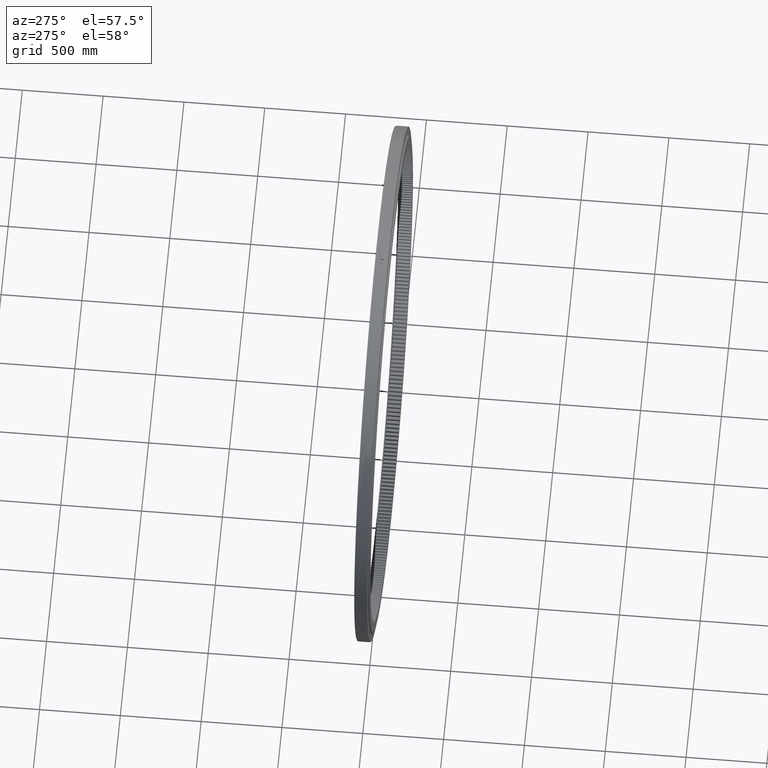
[diagram: clean part render]
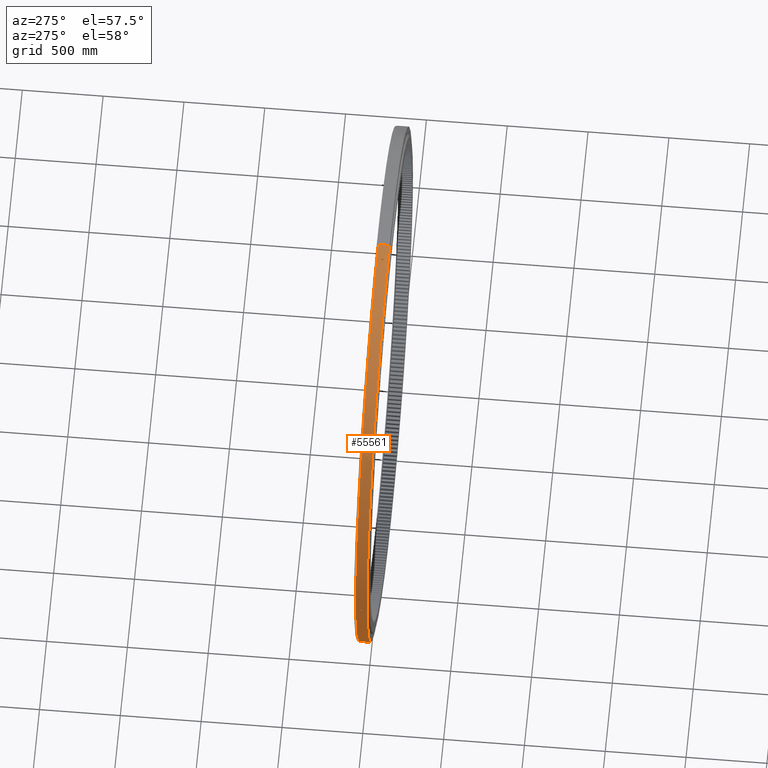
[diagram: same view with one face highlighted and labeled with its STEP entity id]
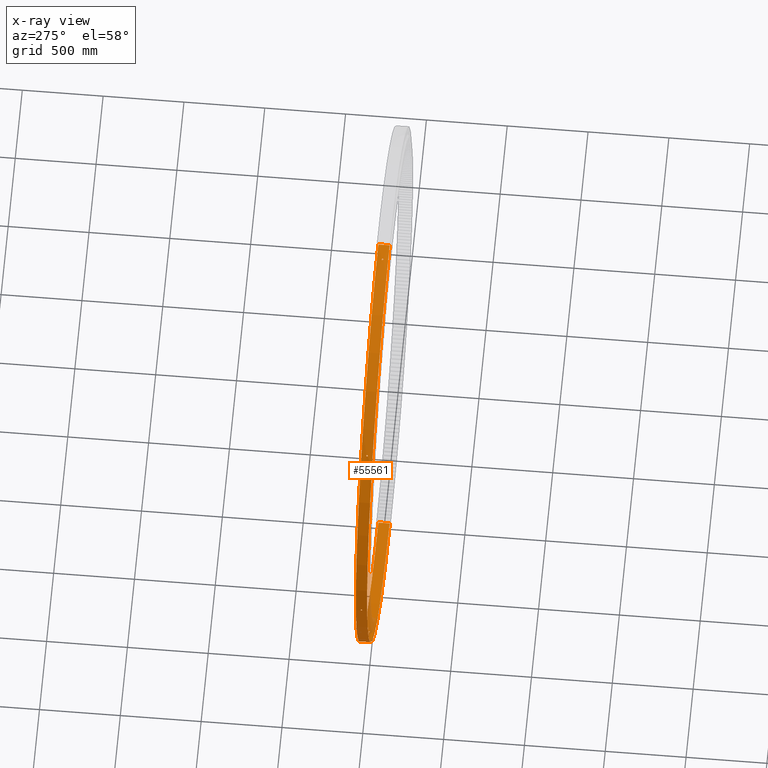
[diagram: x-ray of the same camera — body ghosted, the highlighted face saturated]
A machine part, auxiliary view. The second image highlights one B-rep face of the part: STEP entity #55561.
The next image is the same camera in x-ray: the body ghosted, the highlighted face saturated — about 3% of this face is hidden behind the body in this view.
In plain terms, the highlighted cylindrical surface (partial cylindrical patch) has radius 1595 mm, axis along (0, -1, -0).
Its self-contained STEP definition (entity closure, byte-faithful):
#132 = CARTESIAN_POINT ( 'NONE',  ( -1196.438440038795500, -1.763920608141707400, 1054.779619388085200 ) ) ;
#383 = CARTESIAN_POINT ( 'NONE',  ( -1049.234767033765600, 3.145278498895047300, -1201.304043212002200 ) ) ;
#417 = CARTESIAN_POINT ( 'NONE',  ( -1196.212662096979100, -0.004224121743892995800, 1055.035664641812400 ) ) ;
#650 = ORIENTED_EDGE ( 'NONE', *, *, #77577, .F. ) ;
#667 = CARTESIAN_POINT ( 'NONE',  ( -1048.269003066281400, 0.09451856462817465100, -1202.146645311543600 ) ) ;
#832 = B_SPLINE_CURVE_WITH_KNOTS ( 'NONE', 3,
 ( #16620, #30060, #83489, #43482, #3554, #50248, #10246, #56976, #16919, #63639 ),
 .UNSPECIFIED., .F., .F.,
 ( 4, 2, 2, 2, 4 ),
 ( 0.5001327926868669400, 0.6250995945151501800, 0.7500663963434335300, 0.8750331981717167600, 1.000000000000000000 ),
 .UNSPECIFIED. ) ;
#895 = CARTESIAN_POINT ( 'NONE',  ( -1199.804653960917900, 4.439742744201960400, 1050.949016189976000 ) ) ;
#1182 = CARTESIAN_POINT ( 'NONE',  ( -1201.537147945559800, 2.738263488281544000, 1048.967835295789200 ) ) ;
#1430 = CARTESIAN_POINT ( 'NONE',  ( -1591.352097898483600, 2.828101596533840300, -107.8124771096598000 ) ) ;
#1431 = CARTESIAN_POINT ( 'NONE',  ( -1591.874020798616600, 0.5890485953949822200, -99.82728016973358400 ) ) ;
#1512 = CARTESIAN_POINT ( 'NONE',  ( -100.7270566776290200, 2.765460214106872700, 1591.818225438491500 ) ) ;
#1574 = CARTESIAN_POINT ( 'NONE',  ( -101.1705298368308800, -3.209744266268081100, 1591.788152875573800 ) ) ;
#1866 = CARTESIAN_POINT ( 'NONE',  ( -99.82846475521111500, -0.1107752720473771800, 1591.872745375209700 ) ) ;
#1984 = CARTESIAN_POINT ( 'NONE',  ( -107.8124771116622000, 2.828101594042042900, 1591.352097898347900 ) ) ;
#2489 = EDGE_CURVE ( 'NONE', #65314, #79631, #57530, .T. ) ;
#2963 = B_SPLINE_CURVE_WITH_KNOTS ( 'NONE', 3,
 ( #54659, #28048, #81452, #41423, #1512, #48208, #8230, #54948, #14890, #61624 ),
 .UNSPECIFIED., .F., .F.,
 ( 4, 2, 2, 2, 4 ),
 ( 0.5001327926868663900, 0.6250995945151498500, 0.7500663963434331900, 0.8750331981717165400, 1.000000000000000000 ),
 .UNSPECIFIED. ) ;
#3218 = CARTESIAN_POINT ( 'NONE',  ( -1048.698258008797000, -2.265791069455489500, -1201.775172557172000 ) ) ;
#3286 = VERTEX_POINT ( 'NONE', #86534 ) ;
#3366 = B_SPLINE_CURVE_WITH_KNOTS ( 'NONE', 3,
 ( #12891, #78875, #6213, #59628, #19605, #66316, #26345, #73007, #33010, #79743, #39731, #86467, #46465, #6504, #53214, #13177, #59915, #19901, #66600, #26632, #73297 ),
 .UNSPECIFIED., .F., .F.,
 ( 4, 2, 1, 1, 1, 1, 1, 2, 2, 2, 2, 2, 4 ),
 ( 0.5002077525249721800, 0.5006958308916470400, 0.5011839092583219000, 0.5021600659916717300, 0.5041123794583710600, 0.5080170063917697200, 0.5158262602585672600, 0.5314447679921622300, 0.5626817834593522700, 0.6251558143937310200, 0.7501038762624874200, 0.8750519381312436000, 1.000000000000000000 ),
 .UNSPECIFIED. ) ;
#3554 = CARTESIAN_POINT ( 'NONE',  ( -1196.810246449608900, 2.765460214106747000, 1054.360676798178500 ) ) ;
#3648 = DIRECTION ( 'NONE',  ( 1.173697223544192200E-016, -1.000000000000000000, -3.494217355385783800E-017 ) ) ;
#3865 = EDGE_CURVE ( 'NONE', #38495, #68667, #3366, .T. ) ;
#4397 = CARTESIAN_POINT ( 'NONE',  ( -108.2416070001657300, -2.265987768509334400, 1591.325031590750500 ) ) ;
#4480 = CARTESIAN_POINT ( 'NONE',  ( -1051.656575084603200, 4.499999975631580700, -1199.184492928974800 ) ) ;
#4568 = CARTESIAN_POINT ( 'NONE',  ( -1202.146609267661200, -0.06357894050262287400, 1048.269473592713700 ) ) ;
#4603 = CARTESIAN_POINT ( 'NONE',  ( -1053.528278274565500, -3.751236669441897500, -1197.540412943111500 ) ) ;
#4856 = CARTESIAN_POINT ( 'NONE',  ( -1199.184492928970700, -4.500000024368523200, 1051.656575084607500 ) ) ;
#4896 = CARTESIAN_POINT ( 'NONE',  ( -1054.779619388067900, -1.763920608181384700, -1196.438440038810800 ) ) ;
#5180 = CARTESIAN_POINT ( 'NONE',  ( -1055.035664641808400, -0.004224121744196602700, -1196.212662096983000 ) ) ;
#5617 = CARTESIAN_POINT ( 'NONE',  ( -1591.584982565572100, -4.500000024368529400, -104.3179911220838500 ) ) ;
#5899 = CARTESIAN_POINT ( 'NONE',  ( -1591.718501871047500, -4.013417103106243100, -102.2596337892394600 ) ) ;
#6178 = CARTESIAN_POINT ( 'NONE',  ( -1591.828296422389500, -2.460532258718448600, -100.5374887743700800 ) ) ;
#6213 = CARTESIAN_POINT ( 'NONE',  ( -1591.284341508080800, -0.004087626029023243500, -108.8079403138844900 ) ) ;
#6343 = B_SPLINE_CURVE_WITH_KNOTS ( 'NONE', 3,
 ( #14798, #1431, #41328, #61524, #21547, #68236, #28255, #74906, #34904, #81637 ),
 .UNSPECIFIED., .F., .F.,
 ( 4, 2, 2, 2, 4 ),
 ( 0.5001327926868661700, 0.6250995945151496300, 0.7500663963434330800, 0.8750331981717165400, 1.000000000000000000 ),
 .UNSPECIFIED. ) ;
#6474 = CARTESIAN_POINT ( 'NONE',  ( -1591.872952548653800, -0.007205812987674631100, -99.82721568748874600 ) ) ;
#6504 = CARTESIAN_POINT ( 'NONE',  ( -1591.301732014147100, -1.449584376417069300, -108.5788885955475400 ) ) ;
#6531 = CARTESIAN_POINT ( 'NONE',  ( -1197.307895232953800, -3.489101883576480700, 1053.792560866951600 ) ) ;
#6581 = AXIS2_PLACEMENT_3D ( 'NONE', #76297, #36266, #83017 ) ;
#6778 = CARTESIAN_POINT ( 'NONE',  ( -1051.656575084603200, 4.499999975631580700, -1199.184492928974800 ) ) ;
#6813 = CARTESIAN_POINT ( 'NONE',  ( -1196.261963106811000, -0.8681628797623397500, 1054.979486362717400 ) ) ;
#6816 = VERTEX_POINT ( 'NONE', #77682 ) ;
#7078 = CARTESIAN_POINT ( 'NONE',  ( -1049.151769863702200, 3.029408991190196700, -1201.376532315958500 ) ) ;
#7111 = CARTESIAN_POINT ( 'NONE',  ( -1196.212665363582800, -2.739593697797320500E-008, 1055.035669824909100 ) ) ;
#7248 = CARTESIAN_POINT ( 'NONE',  ( -1054.948920508960300, 1.177865452787353800, -1196.291381830044200 ) ) ;
#7620 = CARTESIAN_POINT ( 'NONE',  ( -1200.542370640027900, 4.014239206385766100, 1050.106108271902700 ) ) ;
#7857 = CARTESIAN_POINT ( 'NONE',  ( -1591.467917568969100, 4.146128969010127300, -106.0878952568306800 ) ) ;
#7860 = VERTEX_POINT ( 'NONE', #47949 ) ;
#7905 = CARTESIAN_POINT ( 'NONE',  ( -1201.738784628818800, 2.289044582971452500, 1048.736835126266200 ) ) ;
#8141 = CARTESIAN_POINT ( 'NONE',  ( -1591.334035172052200, 2.468168818404383300, -108.0789353199112800 ) ) ;
#8230 = CARTESIAN_POINT ( 'NONE',  ( -102.0565147758504500, 3.932038722735336400, 1591.732545242218500 ) ) ;
#8300 = CARTESIAN_POINT ( 'NONE',  ( -101.1497920139190500, -3.189160287235146600, 1591.789470869470500 ) ) ;
#8421 = CARTESIAN_POINT ( 'NONE',  ( -106.0878952578708100, 4.146128968576046100, 1591.467917568900500 ) ) ;
#8481 = B_SPLINE_CURVE_WITH_KNOTS ( 'NONE', 3,
 ( #44047, #84055, #50816, #10834, #57536, #17479, #64195, #24251, #70913, #30898, #77610, #37604, #84331, #44320, #4397, #51088, #11132, #57823, #17772, #64487, #24529 ),
 .UNSPECIFIED., .F., .F.,
 ( 4, 2, 1, 1, 1, 1, 1, 2, 2, 2, 2, 2, 4 ),
 ( 0.5002077527907186100, 0.5006958311571339000, 0.5011839095235490800, 0.5021600662563797700, 0.5041123797220411500, 0.5080170066533636900, 0.5158262605160086600, 0.5314447682412980500, 0.5626817836918777100, 0.6251558145930374800, 0.7501038763953583600, 0.8750519381976792400, 1.000000000000000000 ),
 .UNSPECIFIED. ) ;
#8592 = CARTESIAN_POINT ( 'NONE',  ( -99.82739805330659500, -0.04507731737625974400, 1591.872882756927500 ) ) ;
#8709 = CARTESIAN_POINT ( 'NONE',  ( -108.0789353216634800, 2.468168815714107300, 1591.334035171932600 ) ) ;
#9911 = CARTESIAN_POINT ( 'NONE',  ( -1049.576475161532700, -3.598288527161792100, -1201.007284052714100 ) ) ;
#10246 = CARTESIAN_POINT ( 'NONE',  ( -1197.689730238366300, 3.932038722735212500, 1053.360022913824900 ) ) ;
#10780 = B_SPLINE_CURVE_WITH_KNOTS ( 'NONE', 3,
 ( #17649, #64380, #37767, #84496, #44492, #4568, #51275, #11289, #57977, #17947, #64653, #24702, #71381, #31361, #78071, #38052, #84792, #44778, #4856 ),
 .UNSPECIFIED., .F., .F.,
 ( 4, 2, 1, 1, 1, 1, 1, 2, 2, 2, 2, 4 ),
 ( 0.5001837085945248800, 0.5011599122886759600, 0.5021361159828269200, 0.5040885233711293000, 0.5079933381477338400, 0.5158029677009435800, 0.5314222268073630600, 0.5626607450202050200, 0.6251377814458958200, 0.7500918542972638800, 0.8750459271486319400, 1.000000000000000000 ),
 .UNSPECIFIED. ) ;
#10834 = CARTESIAN_POINT ( 'NONE',  ( -108.8079343340647700, -0.008689902583629347300, 1591.284350176469600 ) ) ;
#11132 = CARTESIAN_POINT ( 'NONE',  ( -107.0776361703670600, -3.598372993288730300, 1591.403045452619200 ) ) ;
#11289 = CARTESIAN_POINT ( 'NONE',  ( -1202.142979293656300, -0.2567976739097813700, 1048.274129140265100 ) ) ;
#11324 = CARTESIAN_POINT ( 'NONE',  ( -1053.792560866944100, -3.489101883579041700, -1197.307895232959300 ) ) ;
#11455 = DIRECTION ( 'NONE',  ( 1.173697223544192200E-016, -1.000000000000000000, -3.494217355385783800E-017 ) ) ;
#11621 = CARTESIAN_POINT ( 'NONE',  ( -1054.979486362706200, -0.8681628798087400700, -1196.261963106820800 ) ) ;
#11892 = CARTESIAN_POINT ( 'NONE',  ( -1055.035669824904700, -2.739584000983491700E-008, -1196.212665363586400 ) ) ;
#12601 = CARTESIAN_POINT ( 'NONE',  ( -1591.755028339030300, -3.653221515564927500, -101.6899538530172600 ) ) ;
#12869 = CARTESIAN_POINT ( 'NONE',  ( -1591.858763504874800, -1.437043034170685500, -100.0522471487522900 ) ) ;
#12891 = CARTESIAN_POINT ( 'NONE',  ( -1591.284333951849700, 0.0001644143363225109000, -108.8079411102439600 ) ) ;
#12927 = FACE_BOUND ( 'NONE', #64254, .T. ) ;
#13146 = CARTESIAN_POINT ( 'NONE',  ( -1591.872957380996700, -0.004604414827843828500, -99.82721047006066300 ) ) ;
#13177 = CARTESIAN_POINT ( 'NONE',  ( -1591.347505258383800, -2.765224145758762700, -107.9088368964851700 ) ) ;
#13196 = CARTESIAN_POINT ( 'NONE',  ( -1197.194354331080800, -3.340847074186478900, 1053.921565297329400 ) ) ;
#13486 = CARTESIAN_POINT ( 'NONE',  ( -1196.220094737236400, -0.3358848176234164900, 1055.026883941175600 ) ) ;
#13603 = ORIENTED_EDGE ( 'NONE', *, *, #27696, .F. ) ;
#13738 = CARTESIAN_POINT ( 'NONE',  ( -1049.021062674267300, 2.828326222544892900, -1201.490674017280100 ) ) ;
#13910 = CARTESIAN_POINT ( 'NONE',  ( -1054.360676798174600, 2.765460214106949500, -1196.810246449612600 ) ) ;
#14275 = CARTESIAN_POINT ( 'NONE',  ( -1201.104762801364100, 3.448306740738652700, 1049.462919266194100 ) ) ;
#14514 = CARTESIAN_POINT ( 'NONE',  ( -1591.410665158096200, 3.665299364963343600, -106.9442255188829400 ) ) ;
#14560 = CARTESIAN_POINT ( 'NONE',  ( -1201.998128961878800, 1.438896447910102100, 1048.439447731614800 ) ) ;
#14672 = CARTESIAN_POINT ( 'NONE',  ( -102.5466701354699700, -4.145601375036187100, 1591.700020077302300 ) ) ;
#14797 = CARTESIAN_POINT ( 'NONE',  ( -1591.307635888892700, 1.765893098177588700, -108.4665677716248000 ) ) ;
#14798 = CARTESIAN_POINT ( 'NONE',  ( -1591.872963946708300, -2.739594232757063700E-008, -99.82721089294169300 ) ) ;
#14890 = CARTESIAN_POINT ( 'NONE',  ( -103.7302036975859900, 4.499999975631594900, 1591.623508188773000 ) ) ;
#14945 = CARTESIAN_POINT ( 'NONE',  ( -100.7923211137916400, -2.830677936484689900, 1591.812184430278400 ) ) ;
#15055 = CARTESIAN_POINT ( 'NONE',  ( -106.9442255203809300, 3.665299363903498100, 1591.410665157995500 ) ) ;
#15238 = CARTESIAN_POINT ( 'NONE',  ( -99.82722311626399400, -0.01171504270078551500, 1591.872944344621100 ) ) ;
#15356 = CARTESIAN_POINT ( 'NONE',  ( -108.4665677728393100, 1.765893095287168300, 1591.307635888809000 ) ) ;
#15393 = VERTEX_POINT ( 'NONE', #66372 ) ;
#16093 = ORIENTED_EDGE ( 'NONE', *, *, #35596, .F. ) ;
#16286 = CARTESIAN_POINT ( 'NONE',  ( -1048.269155181671700, -0.01755522773115780100, -1202.146779089523300 ) ) ;
#16466 = VERTEX_POINT ( 'NONE', #22912 ) ;
#16560 = CARTESIAN_POINT ( 'NONE',  ( -1050.770814708519100, -4.382848393356406200, -1199.961107986968700 ) ) ;
#16620 = CARTESIAN_POINT ( 'NONE',  ( -1196.212665363582800, -2.739593697797320500E-008, 1055.035669824909100 ) ) ;
#16919 = CARTESIAN_POINT ( 'NONE',  ( -1198.796106184630800, 4.499999975631480400, 1052.099445287776900 ) ) ;
#17479 = CARTESIAN_POINT ( 'NONE',  ( -108.8078498307865800, -0.03170113202895241700, 1591.284397034625000 ) ) ;
#17565 = VERTEX_POINT ( 'NONE', #62410 ) ;
#17649 = CARTESIAN_POINT ( 'NONE',  ( -1202.146776261534600, 0.0002731160785012956400, 1048.269110268144200 ) ) ;
#17654 = B_SPLINE_CURVE_WITH_KNOTS ( 'NONE', 3,
 ( #19627, #59652, #33027, #79769, #39753, #86490, #46490, #6531, #53235, #13196, #59937, #19928, #66620, #26656, #73320, #33319, #80040, #40029, #132, #46772, #6813, #53534, #13486, #60223, #20208, #66926, #26934, #73601, #33603, #80331, #40309, #417, #47070, #7111 ),
 .UNSPECIFIED., .F., .F.,
 ( 4, 2, 2, 2, 2, 1, 1, 1, 2, 2, 2, 2, 2, 2, 2, 1, 1, 1, 2, 4 ),
 ( 0.0000000000000000000, 0.1250331981721536100, 0.1875497972582157400, 0.2188080968012468000, 0.2344372465727725100, 0.2422518214585353500, 0.2461591089014064900, 0.2481127526228332200, 0.2490895744835565400, 0.2500663963442798500, 0.3125829954299252400, 0.3750995945155706200, 0.4376161936012160100, 0.4688744931440410000, 0.4845036429154547200, 0.4923182178011609700, 0.4962255052440137600, 0.4981791489654401900, 0.4991559708261536500, 0.5001327926868669400 ),
 .UNSPECIFIED. ) ;
#17693 = CARTESIAN_POINT ( 'NONE',  ( -1051.978521671162100, -4.500000024368454800, -1198.902153350221900 ) ) ;
#17721 = VERTEX_POINT ( 'NONE', #50738 ) ;
#17772 = CARTESIAN_POINT ( 'NONE',  ( -105.4934115615962200, -4.382859803167413300, 1591.507808887159400 ) ) ;
#17947 = CARTESIAN_POINT ( 'NONE',  ( -1202.109734197076200, -0.7327181281985860600, 1048.313252631091700 ) ) ;
#17985 = CARTESIAN_POINT ( 'NONE',  ( -1053.921565297323200, -3.340847074187874200, -1197.194354331085400 ) ) ;
#18267 = CARTESIAN_POINT ( 'NONE',  ( -1055.026883941169400, -0.3358848176547280000, -1196.220094737241700 ) ) ;
#18304 = LINE ( 'NONE', #24928, #51778 ) ;
#19232 = B_SPLINE_CURVE_WITH_KNOTS ( 'NONE', 3,
 ( #64414, #17693, #37807, #84533, #44532, #4603, #51322, #11324, #58017, #17985, #64698, #24737, #71415, #31409, #78107, #38098, #84830, #44826, #4896, #51596, #11621, #58304, #18267, #64983, #25032, #71697, #31679, #78412, #38386, #85116, #45129, #5180, #51886, #11892 ),
 .UNSPECIFIED., .F., .F.,
 ( 4, 2, 2, 2, 2, 1, 1, 1, 2, 2, 2, 2, 2, 2, 2, 1, 1, 1, 2, 4 ),
 ( 0.0000000000000000000, 0.1250331981744078900, 0.1875497972616118300, 0.2188080968052121800, 0.2344372465770021600, 0.2422518214629065500, 0.2461591089058677600, 0.2481127526273295100, 0.2490895744880504700, 0.2500663963487714200, 0.3125829954332948200, 0.3750995945178182100, 0.4376161936023415500, 0.4688744931446058300, 0.4845036429157367800, 0.4923182178013021900, 0.4962255052440852600, 0.4981791489654767100, 0.4991559708261722500, 0.5001327926868677200 ),
 .UNSPECIFIED. ) ;
#19287 = CARTESIAN_POINT ( 'NONE',  ( -1591.772809005348800, -3.431549648914388400, -101.4115279454008300 ) ) ;
#19320 = B_SPLINE_CURVE_WITH_KNOTS ( 'NONE', 3,
 ( #41189, #74478, #54720, #14672, #61391, #21403, #68102, #28110, #74775, #34768, #81516, #41473, #1574, #48262, #8300, #55006, #14945, #61692, #21689, #68379, #28401, #75056, #35055, #81798, #41770, #1866, #48538, #8592, #55287, #15238, #61970, #21992, #68664, #28679 ),
 .UNSPECIFIED., .F., .F.,
 ( 4, 2, 2, 2, 2, 1, 1, 1, 2, 2, 2, 2, 2, 2, 2, 1, 1, 1, 2, 4 ),
 ( 0.0000000000000000000, 0.1250331981716479000, 0.1875497972574718700, 0.2188080968003849600, 0.2344372465718425300, 0.2422518214575713500, 0.2461591089004348500, 0.2481127526218666300, 0.2490895744825842000, 0.2500663963433017400, 0.3125829954291927100, 0.3750995945150837300, 0.4376161936009745900, 0.4688744931439203200, 0.4845036429153932200, 0.4923182178011296100, 0.4962255052439980000, 0.4981791489654321400, 0.4991559708261493200, 0.5001327926868663900 ),
 .UNSPECIFIED. ) ;
#19525 = EDGE_LOOP ( 'NONE', ( #68169, #71496, #24611, #84613 ) ) ;
#19572 = CARTESIAN_POINT ( 'NONE',  ( -1591.870246164690300, -0.6256159857254245400, -99.86659497442504100 ) ) ;
#19605 = CARTESIAN_POINT ( 'NONE',  ( -1591.284363519316700, -0.01559330051348778300, -108.8079200800746400 ) ) ;
#19627 = CARTESIAN_POINT ( 'NONE',  ( -1199.184492928970700, -4.500000024368523200, 1051.656575084607500 ) ) ;
#19901 = CARTESIAN_POINT ( 'NONE',  ( -1591.436090535492200, -3.931957555901845100, -106.5795327159390200 ) ) ;
#19928 = CARTESIAN_POINT ( 'NONE',  ( -1197.121859678170500, -3.238286759096594000, 1054.003914615689800 ) ) ;
#20180 = CARTESIAN_POINT ( 'NONE',  ( -1050.322358062610400, 4.146168419522744000, -1200.353163994482700 ) ) ;
#20208 = CARTESIAN_POINT ( 'NONE',  ( -1196.213963109798000, -0.1436216789681137000, 1055.033950223444700 ) ) ;
#20479 = CARTESIAN_POINT ( 'NONE',  ( -1048.819858614496300, 2.468410599280407100, -1201.666331362895600 ) ) ;
#20648 = CARTESIAN_POINT ( 'NONE',  ( -1053.360022913820600, 3.932038722735419000, -1197.689730238370200 ) ) ;
#21003 = CARTESIAN_POINT ( 'NONE',  ( -1201.286234148080000, 3.172686990488583300, 1049.255156623873300 ) ) ;
#21242 = CARTESIAN_POINT ( 'NONE',  ( -1591.373517244809800, 3.179213889051862600, -107.4957144731620800 ) ) ;
#21290 = CARTESIAN_POINT ( 'NONE',  ( -1202.120600015258300, 0.6262473214567626500, 1048.298755811243400 ) ) ;
#21403 = CARTESIAN_POINT ( 'NONE',  ( -101.8319569973141900, -3.751236669471159000, 1591.745936476743700 ) ) ;
#21546 = CARTESIAN_POINT ( 'NONE',  ( -1591.289253551974800, 0.8689802510457601500, -108.7332254934099800 ) ) ;
#21547 = CARTESIAN_POINT ( 'NONE',  ( -1591.818225438491500, 2.765460214106748400, -100.7270566776345800 ) ) ;
#21689 = CARTESIAN_POINT ( 'NONE',  ( -100.1679126970122600, -1.763920608161736500, 1591.851555750367200 ) ) ;
#21809 = CARTESIAN_POINT ( 'NONE',  ( -107.4957144748435400, 3.179213887358233400, 1591.373517244696400 ) ) ;
#21992 = CARTESIAN_POINT ( 'NONE',  ( -99.82721224810116200, -0.004224121743974947600, 1591.872957971868100 ) ) ;
#22102 = CARTESIAN_POINT ( 'NONE',  ( -108.7332254939130800, 0.8689802483941681000, 1591.289253551939500 ) ) ;
#22118 = ORIENTED_EDGE ( 'NONE', *, *, #27460, .F. ) ;
#22843 = CARTESIAN_POINT ( 'NONE',  ( -108.8079411102382900, 0.0001644131349790332100, 1591.284333951851100 ) ) ;
#22863 = ORIENTED_EDGE ( 'NONE', *, *, #33588, .F. ) ;
#22912 = CARTESIAN_POINT ( 'NONE',  ( -1048.269110268140400, 0.0002731160786064867800, -1202.146776261538200 ) ) ;
#23030 = CARTESIAN_POINT ( 'NONE',  ( -1048.269473592708900, -0.06357894050256519800, -1202.146609267664200 ) ) ;
#23336 = CARTESIAN_POINT ( 'NONE',  ( -1051.656575084603200, -4.500000024368428200, -1199.184492928974800 ) ) ;
#23470 = CARTESIAN_POINT ( 'NONE',  ( -1591.584982565572100, -4.500000024368529400, -104.3179911220838500 ) ) ;
#23598 = CARTESIAN_POINT ( 'NONE',  ( -1055.035669824904700, -2.739584000983491700E-008, -1196.212665363586400 ) ) ;
#24251 = CARTESIAN_POINT ( 'NONE',  ( -108.8063926667694100, -0.1283382097474982100, 1591.284664818437700 ) ) ;
#24529 = CARTESIAN_POINT ( 'NONE',  ( -104.3179911220783300, -4.500000024368414000, 1591.584982565572500 ) ) ;
#24530 = EDGE_LOOP ( 'NONE', ( #33803, #28723, #45065, #13603 ) ) ;
#24611 = ORIENTED_EDGE ( 'NONE', *, *, #40311, .F. ) ;
#24702 = CARTESIAN_POINT ( 'NONE',  ( -1201.997171496601600, -1.449329242002747700, 1048.443311106548200 ) ) ;
#24737 = CARTESIAN_POINT ( 'NONE',  ( -1054.003914615685300, -3.238286759097113600, -1197.121859678175000 ) ) ;
#24928 = CARTESIAN_POINT ( 'NONE',  ( 9.114162734886484400E-014, -22.16364734299522300, 1595.000000000000000 ) ) ;
#25032 = CARTESIAN_POINT ( 'NONE',  ( -1055.033950223440300, -0.1436216789856747400, -1196.213963109802100 ) ) ;
#25213 = CIRCLE ( 'NONE', #48621, 1595.000000000000000 ) ;
#26017 = CARTESIAN_POINT ( 'NONE',  ( -1591.782569966173500, -3.294402693016781600, -101.2583125015264200 ) ) ;
#26201 = CARTESIAN_POINT ( 'NONE',  ( -1199.184492928970700, 4.499999975631485700, 1051.656575084607500 ) ) ;
#26317 = CARTESIAN_POINT ( 'NONE',  ( -1591.872338230789900, -0.2514984799905981000, -99.83364071399809300 ) ) ;
#26345 = CARTESIAN_POINT ( 'NONE',  ( -1591.284473592968000, -0.06391589098624225800, -108.8075613747625300 ) ) ;
#26632 = CARTESIAN_POINT ( 'NONE',  ( -1591.546454137269800, -4.500000024368533900, -104.9058213441569900 ) ) ;
#26656 = CARTESIAN_POINT ( 'NONE',  ( -1197.094322088443700, -3.197407758508097300, 1054.035191020994900 ) ) ;
#26906 = CARTESIAN_POINT ( 'NONE',  ( -1049.676388706700400, 3.665395412526744900, -1200.918170189918300 ) ) ;
#26934 = CARTESIAN_POINT ( 'NONE',  ( -1196.212900362279000, -0.06619520863608478700, 1055.035260949011900 ) ) ;
#27198 = CARTESIAN_POINT ( 'NONE',  ( -1048.527057111523800, 1.766151685848803800, -1201.921794033880600 ) ) ;
#27367 = CARTESIAN_POINT ( 'NONE',  ( -1052.099445287772600, 4.499999975631617100, -1198.796106184634700 ) ) ;
#27460 = EDGE_CURVE ( 'NONE', #76798, #40191, #63873, .T. ) ;
#27519 = EDGE_CURVE ( 'NONE', #3286, #84828, #77267, .T. ) ;
#27664 = CARTESIAN_POINT ( 'NONE',  ( -1591.584982565572100, 4.499999975631479500, -104.3179911220838500 ) ) ;
#27696 = EDGE_CURVE ( 'NONE', #17721, #6816, #10780, .T. ) ;
#27718 = CARTESIAN_POINT ( 'NONE',  ( -1201.304043211998100, 3.145278498894503300, 1049.234767033768300 ) ) ;
#27953 = CARTESIAN_POINT ( 'NONE',  ( -1591.372333521295300, 3.161526467351789500, -107.5132376601206800 ) ) ;
#28004 = CARTESIAN_POINT ( 'NONE',  ( -1202.146645311539700, 0.09451856462010503600, 1048.269003066285900 ) ) ;
#28048 = CARTESIAN_POINT ( 'NONE',  ( -99.82728016972802700, 0.5890485953951037900, 1591.874020798616600 ) ) ;
#28110 = CARTESIAN_POINT ( 'NONE',  ( -101.4806661344785800, -3.489101883597739200, 1591.768397640371200 ) ) ;
#28254 = CARTESIAN_POINT ( 'NONE',  ( -1591.284244918181500, 0.2389362098054353700, -108.8057877916786800 ) ) ;
#28255 = CARTESIAN_POINT ( 'NONE',  ( -1591.732545242218300, 3.932038722735213400, -102.0565147758559900 ) ) ;
#28401 = CARTESIAN_POINT ( 'NONE',  ( -99.90179736858122800, -0.8681628797857625600, 1591.868095008134600 ) ) ;
#28509 = CARTESIAN_POINT ( 'NONE',  ( -107.5132376623306000, 3.161526465102756100, 1591.372333521146200 ) ) ;
#28618 = B_SPLINE_CURVE_WITH_KNOTS ( 'NONE', 3,
 ( #27664, #74327, #47808, #7857, #54556, #14514, #61248, #21242, #67953, #27953, #74611, #34616, #81356, #41326, #1430, #48110, #8141, #54848, #14797, #61522, #21546, #68234, #28254, #74904, #34902 ),
 .UNSPECIFIED., .F., .F.,
 ( 4, 2, 2, 2, 2, 1, 1, 1, 2, 2, 2, 2, 2, 4 ),
 ( 0.0000000000000000000, 0.1250519381313493500, 0.1875779071970240000, 0.2501038762626986400, 0.2510808445293496400, 0.2520578127960006500, 0.2540117493293000400, 0.2579196223958974400, 0.2657353685290934100, 0.2813668607954852900, 0.3126298453282692100, 0.3751558143938369400, 0.4376817834594045600, 0.5002077525249721800 ),
 .UNSPECIFIED. ) ;
#28679 = CARTESIAN_POINT ( 'NONE',  ( -99.82721089293626400, -2.739582878850220000E-008, 1591.872963946708300 ) ) ;
#28723 = ORIENTED_EDGE ( 'NONE', *, *, #64875, .F. ) ;
#28798 = CARTESIAN_POINT ( 'NONE',  ( -108.8057877917631700, 0.2389362078827857700, 1591.284244918176500 ) ) ;
#29722 = CARTESIAN_POINT ( 'NONE',  ( -1048.274129140260800, -0.2567976739097230200, -1202.142979293659200 ) ) ;
#30060 = CARTESIAN_POINT ( 'NONE',  ( -1196.213461656823300, 0.5890485953949881100, 1055.036368145971000 ) ) ;
#30615 = EDGE_CURVE ( 'NONE', #71503, #51700, #6343, .T. ) ;
#30679 = FACE_BOUND ( 'NONE', #24530, .T. ) ;
#30898 = CARTESIAN_POINT ( 'NONE',  ( -108.7936023815496200, -0.3673143386405062200, 1591.285919176963500 ) ) ;
#31105 = ORIENTED_EDGE ( 'NONE', *, *, #78978, .F. ) ;
#31361 = CARTESIAN_POINT ( 'NONE',  ( -1201.555764462718100, -2.765068120410928600, 1048.949448117275300 ) ) ;
#31409 = CARTESIAN_POINT ( 'NONE',  ( -1054.035191020990200, -3.197407758508188400, -1197.094322088447400 ) ) ;
#31679 = CARTESIAN_POINT ( 'NONE',  ( -1055.035260949007600, -0.06619520864526773400, -1196.212900362282400 ) ) ;
#31715 = EDGE_LOOP ( 'NONE', ( #38518, #47597, #49026, #31105 ) ) ;
#32693 = CARTESIAN_POINT ( 'NONE',  ( -1591.788152875573400, -3.209744266268293800, -101.1705298368365200 ) ) ;
#32982 = CARTESIAN_POINT ( 'NONE',  ( -1591.872745375209400, -0.1107752720488612800, -99.82846475521674300 ) ) ;
#33010 = CARTESIAN_POINT ( 'NONE',  ( -1591.285199668077200, -0.2571248919405815800, -108.8016886214596800 ) ) ;
#33027 = CARTESIAN_POINT ( 'NONE',  ( -1198.563553492645700, -4.439702520757305300, 1052.364219379338000 ) ) ;
#33319 = CARTESIAN_POINT ( 'NONE',  ( -1197.086785049791200, -3.186076360708820900, 1054.043751030015800 ) ) ;
#33573 = CARTESIAN_POINT ( 'NONE',  ( -1049.260172009351700, 3.179367126453334500, -1201.281853460620800 ) ) ;
#33588 = EDGE_CURVE ( 'NONE', #84828, #15393, #8481, .T. ) ;
#33603 = CARTESIAN_POINT ( 'NONE',  ( -1196.212670267874300, -0.02249341135142646600, 1055.035609370598900 ) ) ;
#33803 = ORIENTED_EDGE ( 'NONE', *, *, #64020, .F. ) ;
#33846 = CARTESIAN_POINT ( 'NONE',  ( -1048.325455229127600, 0.8692167346378263400, -1202.097393260798100 ) ) ;
#34383 = CARTESIAN_POINT ( 'NONE',  ( -1201.376532315956400, 3.029408991187744900, 1049.151769863705300 ) ) ;
#34616 = CARTESIAN_POINT ( 'NONE',  ( -1591.368721988020100, 3.106578333250961300, -107.5666908891646000 ) ) ;
#34768 = CARTESIAN_POINT ( 'NONE',  ( -101.3091606852857800, -3.340847074198281900, 1591.779332006238500 ) ) ;
#34881 = CARTESIAN_POINT ( 'NONE',  ( -104.7451412552590900, 4.499999975631594900, 1591.556985666702100 ) ) ;
#34902 = CARTESIAN_POINT ( 'NONE',  ( -1591.284333951849700, 0.0001644143363225109000, -108.8079411102439600 ) ) ;
#34904 = CARTESIAN_POINT ( 'NONE',  ( -1591.623508188772800, 4.499999975631476800, -103.7302036975915200 ) ) ;
#34914 = CARTESIAN_POINT ( 'NONE',  ( -1048.269111794858600, -0.001198387348161042100, -1202.146778104208600 ) ) ;
#35055 = CARTESIAN_POINT ( 'NONE',  ( -99.83867681139466300, -0.3358848176391979200, 1591.872004749231800 ) ) ;
#35166 = CARTESIAN_POINT ( 'NONE',  ( -107.5666908913423300, 3.106578330957710900, 1591.368721987873000 ) ) ;
#35468 = CARTESIAN_POINT ( 'NONE',  ( -108.8079411102382900, 0.0001644131349790332100, 1591.284333951851100 ) ) ;
#35596 = EDGE_CURVE ( 'NONE', #16466, #71919, #36987, .T. ) ;
#36016 = CARTESIAN_POINT ( 'NONE',  ( -1591.584982565572100, 4.499999975631479500, -104.3179911220838500 ) ) ;
#36266 = DIRECTION ( 'NONE',  ( -1.173697223544192200E-016, 1.000000000000000000, 8.822830751849692900E-017 ) ) ;
#36384 = CARTESIAN_POINT ( 'NONE',  ( -1048.313252631086900, -0.7327181281985250000, -1202.109734197079900 ) ) ;
#36987 = B_SPLINE_CURVE_WITH_KNOTS ( 'NONE', 3,
 ( #48123, #34914, #56334, #16286, #63015, #23030, #69723, #29722, #76409, #36384, #83138, #43133, #3218, #49890, #9911, #56630, #16560, #63304, #23336 ),
 .UNSPECIFIED., .F., .F.,
 ( 4, 2, 1, 1, 1, 1, 1, 2, 2, 2, 2, 4 ),
 ( 0.5001837085945277700, 0.5011599122886794000, 0.5021361159828309200, 0.5040885233711338600, 0.5079933381477398400, 0.5158029677009511300, 0.5314222268073738300, 0.5626607450202161200, 0.6251377814458937100, 0.7500918542972625500, 0.8750459271486312800, 1.000000000000000000 ),
 .UNSPECIFIED. ) ;
#37598 = VECTOR ( 'NONE', #11455, 1000.000000000000000 ) ;
#37604 = CARTESIAN_POINT ( 'NONE',  ( -108.7504853328438400, -0.7330188384808684600, 1591.289358273158100 ) ) ;
#37767 = CARTESIAN_POINT ( 'NONE',  ( -1202.146784151694200, -0.008350268173916847200, 1048.269124380187600 ) ) ;
#37807 = CARTESIAN_POINT ( 'NONE',  ( -1052.364219379325500, -4.439702520759563100, -1198.563553492656900 ) ) ;
#38052 = CARTESIAN_POINT ( 'NONE',  ( -1200.678427957990200, -3.931903888289741900, 1049.952065544710900 ) ) ;
#38098 = CARTESIAN_POINT ( 'NONE',  ( -1054.043751030011000, -3.186076360708617100, -1197.086785049794600 ) ) ;
#38386 = CARTESIAN_POINT ( 'NONE',  ( -1055.035609370594300, -0.02249341135463961400, -1196.212670267877700 ) ) ;
#38495 = VERTEX_POINT ( 'NONE', #72477 ) ;
#38518 = ORIENTED_EDGE ( 'NONE', *, *, #43447, .F. ) ;
#39320 = VERTEX_POINT ( 'NONE', #26201 ) ;
#39364 = DIRECTION ( 'NONE',  ( 5.551115123125782700E-017, -3.480322961207387600E-017, 1.000000000000000000 ) ) ;
#39398 = CARTESIAN_POINT ( 'NONE',  ( -1591.789470869470300, -3.189160287235288700, -101.1497920139246700 ) ) ;
#39703 = CARTESIAN_POINT ( 'NONE',  ( -1591.872882756928000, -0.04507731737700097100, -99.82739805331219400 ) ) ;
#39731 = CARTESIAN_POINT ( 'NONE',  ( -1591.287705011919600, -0.5871622338727426900, -108.7720436955891300 ) ) ;
#39753 = CARTESIAN_POINT ( 'NONE',  ( -1197.823426907082900, -4.013417103066072600, 1053.206465919144900 ) ) ;
#40003 = CARTESIAN_POINT ( 'NONE',  ( -1051.334753002004200, 4.499999975631555800, -1199.466723320685600 ) ) ;
#40029 = CARTESIAN_POINT ( 'NONE',  ( -1196.683322960716400, -2.460532258704638800, 1054.501842809087100 ) ) ;
#40191 = VERTEX_POINT ( 'NONE', #4480 ) ;
#40279 = CARTESIAN_POINT ( 'NONE',  ( -1049.246980291556400, 3.161729909470909900, -1201.293375706148300 ) ) ;
#40309 = CARTESIAN_POINT ( 'NONE',  ( -1196.212660694196800, -0.007205812987143804000, 1055.035658375010400 ) ) ;
#40311 = EDGE_CURVE ( 'NONE', #68667, #71503, #76871, .T. ) ;
#40564 = CARTESIAN_POINT ( 'NONE',  ( -1048.270576059552000, 0.2391081467825600100, -1202.145185410547400 ) ) ;
#41089 = CARTESIAN_POINT ( 'NONE',  ( -1201.490674017278900, 2.828326222539230700, 1049.021062674267600 ) ) ;
#41189 = CARTESIAN_POINT ( 'NONE',  ( -104.3179911220783300, -4.500000024368414000, 1591.584982565572500 ) ) ;
#41326 = CARTESIAN_POINT ( 'NONE',  ( -1591.359814183362000, 2.962314381118696700, -107.6984435168204300 ) ) ;
#41328 = CARTESIAN_POINT ( 'NONE',  ( -1591.867283864363800, 1.177865452787203000, -99.94421286973290800 ) ) ;
#41423 = CARTESIAN_POINT ( 'NONE',  ( -100.3941896265888700, 2.266285385526494600, 1591.839380383514000 ) ) ;
#41473 = CARTESIAN_POINT ( 'NONE',  ( -101.1996694631657000, -3.238286759100900800, 1591.786300307006100 ) ) ;
#41770 = CARTESIAN_POINT ( 'NONE',  ( -99.82934447994173900, -0.1436216789769330900, 1591.872665650001200 ) ) ;
#41873 = CARTESIAN_POINT ( 'NONE',  ( -107.6984435189094300, 2.962314378717919400, 1591.359814183220800 ) ) ;
#41947 = CARTESIAN_POINT ( 'NONE',  ( 9.264822649626086500E-014, -34.99999999999975100, 1595.000000000000000 ) ) ;
#42449 = VERTEX_POINT ( 'NONE', #51430 ) ;
#43133 = CARTESIAN_POINT ( 'NONE',  ( -1048.443311106544300, -1.449329242002681500, -1201.997171496605200 ) ) ;
#43374 = EDGE_LOOP ( 'NONE', ( #74671, #59575, #55295, #22863 ) ) ;
#43447 = EDGE_CURVE ( 'NONE', #65314, #17565, #81264, .T. ) ;
#43482 = CARTESIAN_POINT ( 'NONE',  ( -1196.589832705666100, 2.266285385526370700, 1054.611008152283600 ) ) ;
#43580 = CARTESIAN_POINT ( 'NONE',  ( 4.107940282404637600E-015, -34.99999999999970200, -1.222976074385013800E-015 ) ) ;
#43811 = EDGE_CURVE ( 'NONE', #15393, #42449, #19320, .T. ) ;
#44047 = CARTESIAN_POINT ( 'NONE',  ( -108.8079411102382900, 0.0001644131349790332100, 1591.284333951851100 ) ) ;
#44243 = CYLINDRICAL_SURFACE ( 'NONE', #68165, 1595.000000000000000 ) ;
#44320 = CARTESIAN_POINT ( 'NONE',  ( -108.5788885945762700, -1.449584379236803500, 1591.301732014215100 ) ) ;
#44492 = CARTESIAN_POINT ( 'NONE',  ( -1202.146757511195800, -0.03136260609463621000, 1048.269217294078500 ) ) ;
#44532 = CARTESIAN_POINT ( 'NONE',  ( -1053.206465919133700, -4.013417103070774600, -1197.823426907092200 ) ) ;
#44778 = CARTESIAN_POINT ( 'NONE',  ( -1199.572926638075800, -4.500000024368510800, 1051.213651328387900 ) ) ;
#44826 = CARTESIAN_POINT ( 'NONE',  ( -1054.501842809070700, -2.460532258727499600, -1196.683322960730300 ) ) ;
#45065 = ORIENTED_EDGE ( 'NONE', *, *, #69181, .F. ) ;
#45129 = CARTESIAN_POINT ( 'NONE',  ( -1055.035658375006500, -0.007205812987936694100, -1196.212660694201100 ) ) ;
#45574 = CARTESIAN_POINT ( 'NONE',  ( -1591.612988949370900, -4.500000024368529400, -103.8906962768693300 ) ) ;
#45858 = CARTESIAN_POINT ( 'NONE',  ( -1591.700020077301800, -4.145601375037615300, -102.5466701354786100 ) ) ;
#46148 = CARTESIAN_POINT ( 'NONE',  ( -1591.812184430277500, -2.830677936485868500, -100.7923211137982800 ) ) ;
#46351 = FACE_OUTER_BOUND ( 'NONE', #31715, .T. ) ;
#46431 = CARTESIAN_POINT ( 'NONE',  ( -1591.872944344621100, -0.01171504270105131400, -99.82722311626956500 ) ) ;
#46465 = CARTESIAN_POINT ( 'NONE',  ( -1591.295685753533700, -1.166356671966831000, -108.6645640329439400 ) ) ;
#46490 = CARTESIAN_POINT ( 'NONE',  ( -1197.446430474299600, -3.653221515533879400, 1053.635118578331900 ) ) ;
#46772 = CARTESIAN_POINT ( 'NONE',  ( -1196.361748797356500, -1.437043034143665700, 1054.866503933703100 ) ) ;
#47036 = CARTESIAN_POINT ( 'NONE',  ( -1049.206627123432600, 3.106785645861099200, -1201.328621111629700 ) ) ;
#47070 = CARTESIAN_POINT ( 'NONE',  ( -1196.212660421901800, -0.004604414827835739400, 1055.035665481272600 ) ) ;
#47211 = CARTESIAN_POINT ( 'NONE',  ( -1055.036368145966200, 0.5890485953951096800, -1196.213461656826700 ) ) ;
#47329 = CARTESIAN_POINT ( 'NONE',  ( -1048.269110268140400, 0.0002731160786064867800, -1202.146776261538200 ) ) ;
#47566 = CARTESIAN_POINT ( 'NONE',  ( -1200.353163994544300, 4.146168419480518200, 1050.322358062540600 ) ) ;
#47597 = ORIENTED_EDGE ( 'NONE', *, *, #2489, .T. ) ;
#47808 = CARTESIAN_POINT ( 'NONE',  ( -1591.523179662633800, 4.439736969408500900, -105.2568805643795600 ) ) ;
#47825 = CARTESIAN_POINT ( 'NONE',  ( -1051.656575084603200, -4.500000024368428200, -1199.184492928974800 ) ) ;
#47862 = CARTESIAN_POINT ( 'NONE',  ( -1201.666331362896200, 2.468410599269245300, 1048.819858614495200 ) ) ;
#47949 = CARTESIAN_POINT ( 'NONE',  ( -1196.212665363582800, -2.739593697797320500E-008, 1055.035669824909100 ) ) ;
#48110 = CARTESIAN_POINT ( 'NONE',  ( -1591.347322861530300, 2.738034138281726800, -107.8829709425099700 ) ) ;
#48123 = CARTESIAN_POINT ( 'NONE',  ( -1048.269110268140400, 0.0002731160786064867800, -1202.146776261538200 ) ) ;
#48208 = CARTESIAN_POINT ( 'NONE',  ( -101.5583827843161800, 3.598500765653869700, 1591.764797149386100 ) ) ;
#48262 = CARTESIAN_POINT ( 'NONE',  ( -101.1580816884463900, -3.197407758509256000, 1591.788944048854800 ) ) ;
#48369 = CARTESIAN_POINT ( 'NONE',  ( -105.2568805649184900, 4.439736969345764500, 1591.523179662597800 ) ) ;
#48538 = CARTESIAN_POINT ( 'NONE',  ( -99.82766618102738200, -0.06619520864066404100, 1591.872840996959900 ) ) ;
#48621 = AXIS2_PLACEMENT_3D ( 'NONE', #43580, #3648, #50343 ) ;
#48654 = CARTESIAN_POINT ( 'NONE',  ( -107.8829709444513900, 2.738034135735440500, 1591.347322861398700 ) ) ;
#49026 = ORIENTED_EDGE ( 'NONE', *, *, #75352, .F. ) ;
#49890 = CARTESIAN_POINT ( 'NONE',  ( -1048.949448117271200, -2.765068120410850000, -1201.555764462721800 ) ) ;
#50248 = CARTESIAN_POINT ( 'NONE',  ( -1197.360303271491100, 3.598500765653744900, 1053.735060965229200 ) ) ;
#50343 = DIRECTION ( 'NONE',  ( 5.551115123125782100E-017, -3.480322961207387600E-017, 1.000000000000000000 ) ) ;
#50738 = CARTESIAN_POINT ( 'NONE',  ( -1202.146776261534600, 0.0002731160785012956400, 1048.269110268144200 ) ) ;
#50816 = CARTESIAN_POINT ( 'NONE',  ( -108.8079403138759700, -0.004087629785196638400, 1591.284341508088600 ) ) ;
#51088 = CARTESIAN_POINT ( 'NONE',  ( -107.9088368951063600, -2.765224147483086500, 1591.347505258476300 ) ) ;
#51275 = CARTESIAN_POINT ( 'NONE',  ( -1202.145921226718900, -0.1280044427705355800, 1048.270431643003800 ) ) ;
#51322 = CARTESIAN_POINT ( 'NONE',  ( -1053.635118578324000, -3.653221515537495600, -1197.446430474306200 ) ) ;
#51430 = CARTESIAN_POINT ( 'NONE',  ( -99.82721089293626400, -2.739582878850220000E-008, 1591.872963946708300 ) ) ;
#51440 = CARTESIAN_POINT ( 'NONE',  ( -2.812701095428504500E-013, -22.16364734299511200, -1595.000000000000000 ) ) ;
#51596 = CARTESIAN_POINT ( 'NONE',  ( -1054.866503933687700, -1.437043034188513400, -1196.361748797370600 ) ) ;
#51700 = VERTEX_POINT ( 'NONE', #36016 ) ;
#51778 = VECTOR ( 'NONE', #71328, 1000.000000000000000 ) ;
#51886 = CARTESIAN_POINT ( 'NONE',  ( -1055.035665481268100, -0.004604414827740726000, -1196.212660421905400 ) ) ;
#52622 = CARTESIAN_POINT ( 'NONE',  ( -1591.745936476743700, -3.751236669472509400, -101.8319569973216300 ) ) ;
#52911 = CARTESIAN_POINT ( 'NONE',  ( -1591.851555750367400, -1.763920608165622200, -100.1679126970195000 ) ) ;
#53182 = CARTESIAN_POINT ( 'NONE',  ( -1591.872957971867200, -0.004224121744129726500, -99.82721224810674700 ) ) ;
#53214 = CARTESIAN_POINT ( 'NONE',  ( -1591.325031590662300, -2.265987766335491000, -108.2416070014680400 ) ) ;
#53235 = CARTESIAN_POINT ( 'NONE',  ( -1197.262126456706500, -3.431549648895760600, 1053.844568255377000 ) ) ;
#53534 = CARTESIAN_POINT ( 'NONE',  ( -1196.238592352573300, -0.6256159856995918700, 1055.005899311729500 ) ) ;
#53773 = CARTESIAN_POINT ( 'NONE',  ( -1049.107158914356900, 2.962531083881638300, -1201.415491006051500 ) ) ;
#53956 = CARTESIAN_POINT ( 'NONE',  ( -1054.611008152279300, 2.266285385526557700, -1196.589832705669300 ) ) ;
#54314 = CARTESIAN_POINT ( 'NONE',  ( -1200.918170189947200, 3.665395412489077700, 1049.676388706666800 ) ) ;
#54556 = CARTESIAN_POINT ( 'NONE',  ( -1591.448794150041100, 4.014184327831251200, -106.3746114449600400 ) ) ;
#54601 = CARTESIAN_POINT ( 'NONE',  ( -1591.872963946708300, -2.739594232757063700E-008, -99.82721089294169300 ) ) ;
#54612 = CARTESIAN_POINT ( 'NONE',  ( -1201.921794033882900, 1.766151685828707600, 1048.527057111521600 ) ) ;
#54659 = CARTESIAN_POINT ( 'NONE',  ( -99.82721089293626400, -2.739582878850220000E-008, 1591.872963946708300 ) ) ;
#54720 = CARTESIAN_POINT ( 'NONE',  ( -103.3785405565636400, -4.439702520776020100, 1591.646292158907500 ) ) ;
#54848 = CARTESIAN_POINT ( 'NONE',  ( -1591.326561711496000, 2.288796848523577200, -108.1888617293948200 ) ) ;
#54948 = CARTESIAN_POINT ( 'NONE',  ( -103.1426388974139200, 4.382877020533638500, 1591.661886757572600 ) ) ;
#55006 = CARTESIAN_POINT ( 'NONE',  ( -101.1466993568784100, -3.186076360708664600, 1591.789667398139500 ) ) ;
#55122 = CARTESIAN_POINT ( 'NONE',  ( -106.3746114461685600, 4.014184327226813800, 1591.448794149960600 ) ) ;
#55287 = CARTESIAN_POINT ( 'NONE',  ( -99.82725710844694300, -0.02249341135298078800, 1591.872924666912200 ) ) ;
#55295 = ORIENTED_EDGE ( 'NONE', *, *, #43811, .F. ) ;
#55408 = CARTESIAN_POINT ( 'NONE',  ( -108.1888617310127200, 2.288796845763424200, 1591.326561711386100 ) ) ;
#55561 = ADVANCED_FACE ( 'NONE', ( #81864, #64125, #30679, #12927, #46351 ), #44243, .T. ) ;
#56334 = CARTESIAN_POINT ( 'NONE',  ( -1048.269124380183500, -0.008350268173860994300, -1202.146784151698300 ) ) ;
#56630 = CARTESIAN_POINT ( 'NONE',  ( -1049.952065544706800, -3.931903888289650000, -1200.678427957993800 ) ) ;
#56976 = CARTESIAN_POINT ( 'NONE',  ( -1198.407772876292500, 4.382877020533519500, 1052.542054088615300 ) ) ;
#57530 = LINE ( 'NONE', #51440, #37598 ) ;
#57536 = CARTESIAN_POINT ( 'NONE',  ( -108.8079200800564600, -0.01559330426352639900, 1591.284363519323300 ) ) ;
#57823 = CARTESIAN_POINT ( 'NONE',  ( -106.5795327148254600, -3.931957556494873400, 1591.436090535566300 ) ) ;
#57977 = CARTESIAN_POINT ( 'NONE',  ( -1202.130837869783100, -0.5139204549792015800, 1048.288643054314200 ) ) ;
#58017 = CARTESIAN_POINT ( 'NONE',  ( -1053.844568255370900, -3.431549648897898500, -1197.262126456711500 ) ) ;
#58304 = CARTESIAN_POINT ( 'NONE',  ( -1055.005899311720900, -0.6256159857424741200, -1196.238592352581000 ) ) ;
#58532 = VERTEX_POINT ( 'NONE', #41947 ) ;
#59312 = CARTESIAN_POINT ( 'NONE',  ( -1591.768397640371400, -3.489101883598645600, -101.4806661344851800 ) ) ;
#59575 = ORIENTED_EDGE ( 'NONE', *, *, #77665, .F. ) ;
#59597 = CARTESIAN_POINT ( 'NONE',  ( -1591.868095008134800, -0.8681628797902878300, -99.90179736858765100 ) ) ;
#59628 = CARTESIAN_POINT ( 'NONE',  ( -1591.284350176462300, -0.008689898829908516600, -108.8079343340771900 ) ) ;
#59652 = CARTESIAN_POINT ( 'NONE',  ( -1198.902153350213000, -4.500000024368520500, 1051.978521671171800 ) ) ;
#59888 = CARTESIAN_POINT ( 'NONE',  ( -1591.872963946708300, -2.739594232757063700E-008, -99.82721089294169300 ) ) ;
#59915 = CARTESIAN_POINT ( 'NONE',  ( -1591.403045452533900, -3.598372992355320500, -107.0776361716511400 ) ) ;
#59937 = CARTESIAN_POINT ( 'NONE',  ( -1197.160688818959000, -3.294402693007834900, 1053.959809976304800 ) ) ;
#60191 = CARTESIAN_POINT ( 'NONE',  ( -1050.949016190051200, 4.439742744224401100, -1199.804653960852400 ) ) ;
#60223 = CARTESIAN_POINT ( 'NONE',  ( -1196.216769485683700, -0.2514984799746666200, 1055.030680806869900 ) ) ;
#60473 = CARTESIAN_POINT ( 'NONE',  ( -1048.967835295789200, 2.738263488288617000, -1201.537147945560000 ) ) ;
#60649 = CARTESIAN_POINT ( 'NONE',  ( -1053.735060965224900, 3.598500765653954900, -1197.360303271495500 ) ) ;
#60998 = CARTESIAN_POINT ( 'NONE',  ( -1201.281853460617400, 3.179367126453710200, 1049.260172009356900 ) ) ;
#61248 = CARTESIAN_POINT ( 'NONE',  ( -1591.391659614813500, 3.448184904233443600, -107.2271229510158200 ) ) ;
#61295 = CARTESIAN_POINT ( 'NONE',  ( -1202.097393260797400, 0.8692167346142610800, 1048.325455229128000 ) ) ;
#61391 = CARTESIAN_POINT ( 'NONE',  ( -102.2596337892311700, -4.013417103104698600, 1591.718501871047900 ) ) ;
#61522 = CARTESIAN_POINT ( 'NONE',  ( -1591.299665259565500, 1.438640028961758700, -108.5824699103137600 ) ) ;
#61524 = CARTESIAN_POINT ( 'NONE',  ( -1591.839380383513600, 2.266285385526368000, -100.3941896265944500 ) ) ;
#61624 = CARTESIAN_POINT ( 'NONE',  ( -104.3179911220783300, 4.499999975631594900, 1591.584982565572500 ) ) ;
#61692 = CARTESIAN_POINT ( 'NONE',  ( -100.5374887743629800, -2.460532258716157500, 1591.828296422389700 ) ) ;
#61802 = CARTESIAN_POINT ( 'NONE',  ( -107.2271229526347200, 3.448184902888007800, 1591.391659614704800 ) ) ;
#61970 = CARTESIAN_POINT ( 'NONE',  ( -99.82721568748314700, -0.007205812987473488200, 1591.872952548654000 ) ) ;
#62084 = CARTESIAN_POINT ( 'NONE',  ( -108.5824699112610400, 1.438640026091086300, 1591.299665259500400 ) ) ;
#62410 = CARTESIAN_POINT ( 'NONE',  ( 8.854028621385622100E-014, 35.00000000000013500, 1595.000000000000000 ) ) ;
#63015 = CARTESIAN_POINT ( 'NONE',  ( -1048.269217294074900, -0.03136260609457979000, -1202.146757511199200 ) ) ;
#63304 = CARTESIAN_POINT ( 'NONE',  ( -1051.213651328383500, -4.500000024368416600, -1199.572926638079700 ) ) ;
#63639 = CARTESIAN_POINT ( 'NONE',  ( -1199.184492928970700, 4.499999975631485700, 1051.656575084607500 ) ) ;
#63873 = B_SPLINE_CURVE_WITH_KNOTS ( 'NONE', 3,
 ( #73740, #47211, #7248, #53956, #13910, #60649, #20648, #67355, #27367, #74023 ),
 .UNSPECIFIED., .F., .F.,
 ( 4, 2, 2, 2, 4 ),
 ( 0.5001327926868677200, 0.6250995945151507400, 0.7500663963434338600, 0.8750331981717169900, 1.000000000000000000 ),
 .UNSPECIFIED. ) ;
#64020 = EDGE_CURVE ( 'NONE', #39320, #17721, #80665, .T. ) ;
#64125 = FACE_BOUND ( 'NONE', #43374, .T. ) ;
#64195 = CARTESIAN_POINT ( 'NONE',  ( -108.8075613747044900, -0.06391589471028395800, 1591.284473592978000 ) ) ;
#64254 = EDGE_LOOP ( 'NONE', ( #650, #22118, #80792, #16093 ) ) ;
#64380 = CARTESIAN_POINT ( 'NONE',  ( -1202.146778104204700, -0.001198387348143478400, 1048.269111794862300 ) ) ;
#64414 = CARTESIAN_POINT ( 'NONE',  ( -1051.656575084603200, -4.500000024368428200, -1199.184492928974800 ) ) ;
#64487 = CARTESIAN_POINT ( 'NONE',  ( -104.9058213438389200, -4.500000024368414800, 1591.546454137290800 ) ) ;
#64653 = CARTESIAN_POINT ( 'NONE',  ( -1202.053469079392500, -1.166082508161258000, 1048.378463984461000 ) ) ;
#64698 = CARTESIAN_POINT ( 'NONE',  ( -1053.959809976300000, -3.294402693008758700, -1197.160688818963500 ) ) ;
#64875 = EDGE_CURVE ( 'NONE', #7860, #39320, #832, .T. ) ;
#64983 = CARTESIAN_POINT ( 'NONE',  ( -1055.030680806865100, -0.2514984800010800500, -1196.216769485689200 ) ) ;
#65314 = VERTEX_POINT ( 'NONE', #76365 ) ;
#66010 = CARTESIAN_POINT ( 'NONE',  ( -1591.779332006237800, -3.340847074198840500, -101.3091606852918300 ) ) ;
#66288 = CARTESIAN_POINT ( 'NONE',  ( -1591.872004749231300, -0.3358848176422922800, -99.83867681140046100 ) ) ;
#66316 = CARTESIAN_POINT ( 'NONE',  ( -1591.284397034616900, -0.03170112828753850200, -108.8078498308180700 ) ) ;
#66372 = CARTESIAN_POINT ( 'NONE',  ( -104.3179911220783300, -4.500000024368414000, 1591.584982565572500 ) ) ;
#66600 = CARTESIAN_POINT ( 'NONE',  ( -1591.507808887118200, -4.382859803041432300, -105.4934115622262900 ) ) ;
#66620 = CARTESIAN_POINT ( 'NONE',  ( -1197.102564814586000, -3.209744266265914800, 1054.025829406867200 ) ) ;
#66887 = CARTESIAN_POINT ( 'NONE',  ( -1050.106108271963900, 4.014239206431863500, -1200.542370639974500 ) ) ;
#66926 = CARTESIAN_POINT ( 'NONE',  ( -1196.213397424710600, -0.1107752720401775600, 1055.034628657002900 ) ) ;
#67187 = CARTESIAN_POINT ( 'NONE',  ( -1048.736835126268000, 2.289044582985143800, -1201.738784628817500 ) ) ;
#67355 = CARTESIAN_POINT ( 'NONE',  ( -1052.542054088610900, 4.382877020533688200, -1198.407772876297000 ) ) ;
#67615 = CARTESIAN_POINT ( 'NONE',  ( -2.838714506778591200E-013, -34.99999999999964500, -1595.000000000000000 ) ) ;
#67703 = CARTESIAN_POINT ( 'NONE',  ( -1201.293375706144600, 3.161729909470588400, 1049.246980291560000 ) ) ;
#67953 = CARTESIAN_POINT ( 'NONE',  ( -1591.373065177699600, 3.172484335100388600, -107.5024068743329100 ) ) ;
#68000 = CARTESIAN_POINT ( 'NONE',  ( -1202.145185410543700, 0.2391081467685124400, 1048.270576059555700 ) ) ;
#68102 = CARTESIAN_POINT ( 'NONE',  ( -101.6899538530101900, -3.653221515563705800, 1591.755028339031000 ) ) ;
#68165 = AXIS2_PLACEMENT_3D ( 'NONE', #79377, #86096, #39364 ) ;
#68169 = ORIENTED_EDGE ( 'NONE', *, *, #76280, .F. ) ;
#68234 = CARTESIAN_POINT ( 'NONE',  ( -1591.286784959967700, 0.6260284845767660800, -108.7684987164264200 ) ) ;
#68236 = CARTESIAN_POINT ( 'NONE',  ( -1591.764797149385900, 3.598500765653745800, -101.5583827843217600 ) ) ;
#68379 = CARTESIAN_POINT ( 'NONE',  ( -100.0522471487452800, -1.437043034166308300, 1591.858763504875000 ) ) ;
#68494 = CARTESIAN_POINT ( 'NONE',  ( -107.5024068765491400, 3.172484332860335200, 1591.373065177549700 ) ) ;
#68664 = CARTESIAN_POINT ( 'NONE',  ( -99.82721047005500700, -0.004604414827723841100, 1591.872957380996200 ) ) ;
#68667 = VERTEX_POINT ( 'NONE', #23470 ) ;
#68783 = CARTESIAN_POINT ( 'NONE',  ( -108.7684987167524200, 0.6260284821231046900, 1591.286784959944300 ) ) ;
#69181 = EDGE_CURVE ( 'NONE', #6816, #7860, #17654, .T. ) ;
#69723 = CARTESIAN_POINT ( 'NONE',  ( -1048.270431642999000, -0.1280044427704766500, -1202.145921226722500 ) ) ;
#70913 = CARTESIAN_POINT ( 'NONE',  ( -108.8016886212469000, -0.2571248955570472100, 1591.285199668097400 ) ) ;
#71328 = DIRECTION ( 'NONE',  ( 1.173697223544192200E-016, -1.000000000000000000, -3.494217355385783800E-017 ) ) ;
#71381 = CARTESIAN_POINT ( 'NONE',  ( -1201.775172557167900, -2.265791069455562300, 1048.698258008800400 ) ) ;
#71415 = CARTESIAN_POINT ( 'NONE',  ( -1054.025829406862400, -3.209744266266204800, -1197.102564814589600 ) ) ;
#71496 = ORIENTED_EDGE ( 'NONE', *, *, #30615, .F. ) ;
#71503 = VERTEX_POINT ( 'NONE', #54601 ) ;
#71697 = CARTESIAN_POINT ( 'NONE',  ( -1055.034628656998800, -0.1107752720545361800, -1196.213397424715100 ) ) ;
#71919 = VERTEX_POINT ( 'NONE', #47825 ) ;
#72166 = EDGE_CURVE ( 'NONE', #71919, #76798, #19232, .T. ) ;
#72477 = CARTESIAN_POINT ( 'NONE',  ( -1591.284333951849700, 0.0001644143363225109000, -108.8079411102439600 ) ) ;
#72700 = CARTESIAN_POINT ( 'NONE',  ( -1591.786300307005600, -3.238286759101178800, -101.1996694631714600 ) ) ;
#72976 = CARTESIAN_POINT ( 'NONE',  ( -1591.872665650001000, -0.1436216789787243300, -99.82934447994738000 ) ) ;
#73007 = CARTESIAN_POINT ( 'NONE',  ( -1591.284664818424500, -0.1283382060586884300, -108.8063926668798600 ) ) ;
#73297 = CARTESIAN_POINT ( 'NONE',  ( -1591.584982565572100, -4.500000024368529400, -104.3179911220838500 ) ) ;
#73320 = CARTESIAN_POINT ( 'NONE',  ( -1197.088832921801900, -3.189160287234639800, 1054.041425224496600 ) ) ;
#73564 = CARTESIAN_POINT ( 'NONE',  ( -1049.462919266208700, 3.448306740763886300, -1201.104762801351900 ) ) ;
#73601 = CARTESIAN_POINT ( 'NONE',  ( -1196.212740296104600, -0.04507731737303941700, 1055.035480072698000 ) ) ;
#73740 = CARTESIAN_POINT ( 'NONE',  ( -1055.035669824904700, -2.739584000983491700E-008, -1196.212665363586400 ) ) ;
#73853 = CARTESIAN_POINT ( 'NONE',  ( -1048.439447731616200, 1.438896447932835200, -1201.998128961877700 ) ) ;
#74023 = CARTESIAN_POINT ( 'NONE',  ( -1051.656575084603200, 4.499999975631580700, -1199.184492928974800 ) ) ;
#74097 = CARTESIAN_POINT ( 'NONE',  ( -1199.466723320728800, 4.499999975631475900, 1051.334753001955300 ) ) ;
#74327 = CARTESIAN_POINT ( 'NONE',  ( -1591.556985666715900, 4.499999975631483000, -104.7451412550408300 ) ) ;
#74379 = CARTESIAN_POINT ( 'NONE',  ( -1201.328621111627200, 3.106785645859886400, 1049.206627123436200 ) ) ;
#74478 = CARTESIAN_POINT ( 'NONE',  ( -103.8906962768615800, -4.500000024368415700, 1591.612988949371400 ) ) ;
#74611 = CARTESIAN_POINT ( 'NONE',  ( -1591.371240569128500, 3.145073882768428600, -107.5294159014695500 ) ) ;
#74660 = CARTESIAN_POINT ( 'NONE',  ( -1202.146776261534600, 0.0002731160785012956400, 1048.269110268144200 ) ) ;
#74671 = ORIENTED_EDGE ( 'NONE', *, *, #27519, .F. ) ;
#74775 = CARTESIAN_POINT ( 'NONE',  ( -101.4115279453944300, -3.431549648913604100, 1591.772809005348600 ) ) ;
#74904 = CARTESIAN_POINT ( 'NONE',  ( -1591.284165410108700, 0.09437584324297909600, -108.8079265897246300 ) ) ;
#74906 = CARTESIAN_POINT ( 'NONE',  ( -1591.661886757572300, 4.382877020533518600, -103.1426388974194500 ) ) ;
#75056 = CARTESIAN_POINT ( 'NONE',  ( -99.86659497441894500, -0.6256159857212336700, 1591.870246164690300 ) ) ;
#75187 = CARTESIAN_POINT ( 'NONE',  ( -107.5294159036699100, 3.145073880505988100, 1591.371240568979600 ) ) ;
#75352 = EDGE_CURVE ( 'NONE', #58532, #79631, #25213, .T. ) ;
#75472 = CARTESIAN_POINT ( 'NONE',  ( -108.8079265897442700, 0.09437584165295390100, 1591.284165410108700 ) ) ;
#76280 = EDGE_CURVE ( 'NONE', #51700, #38495, #28618, .T. ) ;
#76297 = CARTESIAN_POINT ( 'NONE',  ( -4.107940282404704600E-015, 35.00000000000027700, 1.222976074385033900E-015 ) ) ;
#76365 = CARTESIAN_POINT ( 'NONE',  ( -2.838714506778591200E-013, 35.00000000000041200, -1595.000000000000000 ) ) ;
#76409 = CARTESIAN_POINT ( 'NONE',  ( -1048.288643054309900, -0.5139204549791291900, -1202.130837869786100 ) ) ;
#76798 = VERTEX_POINT ( 'NONE', #23598 ) ;
#76871 = B_SPLINE_CURVE_WITH_KNOTS ( 'NONE', 3,
 ( #5617, #45574, #85856, #45858, #5899, #52622, #12601, #59312, #19287, #66010, #26017, #72700, #32693, #79433, #39398, #86149, #46148, #6178, #52911, #12869, #59597, #19572, #66288, #26317, #72976, #32982, #79712, #39703, #86434, #46431, #6474, #53182, #13146, #59888 ),
 .UNSPECIFIED., .F., .F.,
 ( 4, 2, 2, 2, 2, 1, 1, 1, 2, 2, 2, 2, 2, 2, 2, 1, 1, 1, 2, 4 ),
 ( 0.0000000000000000000, 0.1250331981716310800, 0.1875497972574466400, 0.2188080968003533200, 0.2344372465718056500, 0.2422518214575326800, 0.2461591089003979400, 0.2481127526218322700, 0.2490895744825477600, 0.2500663963432632200, 0.3125829954291640100, 0.3750995945150649200, 0.4376161936009657100, 0.4688744931439161600, 0.4845036429153913300, 0.4923182178011288900, 0.4962255052439974400, 0.4981791489654318100, 0.4991559708261489900, 0.5001327926868661700 ),
 .UNSPECIFIED. ) ;
#77267 = B_SPLINE_CURVE_WITH_KNOTS ( 'NONE', 3,
 ( #81620, #34881, #48369, #8421, #55122, #15055, #61802, #21809, #68494, #28509, #75187, #35166, #81911, #41873, #1984, #48654, #8709, #55408, #15356, #62084, #22102, #68783, #28798, #75472, #35468 ),
 .UNSPECIFIED., .F., .F.,
 ( 4, 2, 2, 2, 2, 1, 1, 1, 2, 2, 2, 2, 2, 4 ),
 ( 0.0000000000000000000, 0.1250519381976923100, 0.1875779072965399800, 0.2501038763953876100, 0.2510808446625576500, 0.2520578129297276800, 0.2540117494640663500, 0.2579196225327437500, 0.2657353686700975000, 0.2813668609448061200, 0.3126298454942221200, 0.3751558145930543000, 0.4376817836918864300, 0.5002077527907186100 ),
 .UNSPECIFIED. ) ;
#77577 = EDGE_CURVE ( 'NONE', #40191, #16466, #82888, .T. ) ;
#77610 = CARTESIAN_POINT ( 'NONE',  ( -108.7720436951327400, -0.5871622372902880500, 1591.287705011954600 ) ) ;
#77665 = EDGE_CURVE ( 'NONE', #42449, #3286, #2963, .T. ) ;
#77682 = CARTESIAN_POINT ( 'NONE',  ( -1199.184492928970700, -4.500000024368523200, 1051.656575084607500 ) ) ;
#78071 = CARTESIAN_POINT ( 'NONE',  ( -1201.007284052710000, -3.598288527161879600, 1049.576475161536100 ) ) ;
#78107 = CARTESIAN_POINT ( 'NONE',  ( -1054.041425224491600, -3.189160287234650900, -1197.088832921805300 ) ) ;
#78412 = CARTESIAN_POINT ( 'NONE',  ( -1055.035480072693900, -0.04507731737953664400, -1196.212740296109400 ) ) ;
#78875 = CARTESIAN_POINT ( 'NONE',  ( -1591.284335120719300, -0.0005710066698304750400, -108.8079411900140600 ) ) ;
#78978 = EDGE_CURVE ( 'NONE', #17565, #58532, #18304, .T. ) ;
#79377 = CARTESIAN_POINT ( 'NONE',  ( 2.601341135008604100E-015, -22.16364734299516900, -7.744460120454373600E-016 ) ) ;
#79433 = CARTESIAN_POINT ( 'NONE',  ( -1591.788944048854800, -3.197407758509422500, -101.1580816884520600 ) ) ;
#79631 = VERTEX_POINT ( 'NONE', #67615 ) ;
#79712 = CARTESIAN_POINT ( 'NONE',  ( -1591.872840996959700, -0.06619520864165752400, -99.82766618103298100 ) ) ;
#79743 = CARTESIAN_POINT ( 'NONE',  ( -1591.285919176938500, -0.3673143350891263100, -108.7936023818456700 ) ) ;
#79769 = CARTESIAN_POINT ( 'NONE',  ( -1198.013323652262000, -4.145601375000822500, 1052.990431970593400 ) ) ;
#80040 = CARTESIAN_POINT ( 'NONE',  ( -1196.852123737113300, -2.830677936479113500, 1054.310256234928800 ) ) ;
#80295 = CARTESIAN_POINT ( 'NONE',  ( -1049.255156623868500, 3.172686990488728500, -1201.286234148083800 ) ) ;
#80331 = CARTESIAN_POINT ( 'NONE',  ( -1196.212660146011800, -0.01171504270008388300, 1055.035647320942600 ) ) ;
#80601 = CARTESIAN_POINT ( 'NONE',  ( -1048.298755811241300, 0.6262473214785709800, -1202.120600015260600 ) ) ;
#80665 = B_SPLINE_CURVE_WITH_KNOTS ( 'NONE', 3,
 ( #80830, #74097, #895, #47566, #7620, #54314, #14275, #60998, #21003, #67703, #27718, #74379, #34383, #81108, #41089, #1182, #47862, #7905, #54612, #14560, #61295, #21290, #68000, #28004, #74660 ),
 .UNSPECIFIED., .F., .F.,
 ( 4, 2, 2, 2, 2, 1, 1, 1, 2, 2, 2, 2, 2, 4 ),
 ( 0.0000000000000000000, 0.1250459271488189900, 0.1875688907232431800, 0.2500918542976673400, 0.2510687756035130900, 0.2520456969093589600, 0.2539995395210505300, 0.2579072247444355600, 0.2657225951912057200, 0.2813533360847585400, 0.3126148178718780000, 0.3751377814460936100, 0.4376607450203092700, 0.5001837085945248800 ),
 .UNSPECIFIED. ) ;
#80792 = ORIENTED_EDGE ( 'NONE', *, *, #72166, .F. ) ;
#80830 = CARTESIAN_POINT ( 'NONE',  ( -1199.184492928970700, 4.499999975631485700, 1051.656575084607500 ) ) ;
#81108 = CARTESIAN_POINT ( 'NONE',  ( -1201.415491006049900, 2.962531083878112700, 1049.107158914359200 ) ) ;
#81264 = CIRCLE ( 'NONE', #6581, 1595.000000000000000 ) ;
#81356 = CARTESIAN_POINT ( 'NONE',  ( -1591.363810674330100, 3.029196458977430500, -107.6393547885520500 ) ) ;
#81452 = CARTESIAN_POINT ( 'NONE',  ( -99.94421286972732300, 1.177865452787327800, 1591.867283864364000 ) ) ;
#81516 = CARTESIAN_POINT ( 'NONE',  ( -101.2583125015205100, -3.294402693016354800, 1591.782569966173700 ) ) ;
#81620 = CARTESIAN_POINT ( 'NONE',  ( -104.3179911220783300, 4.499999975631594900, 1591.584982565572500 ) ) ;
#81637 = CARTESIAN_POINT ( 'NONE',  ( -1591.584982565572100, 4.499999975631479500, -104.3179911220838500 ) ) ;
#81798 = CARTESIAN_POINT ( 'NONE',  ( -99.83364071399235200, -0.2514984799879680900, 1591.872338230789900 ) ) ;
#81864 = FACE_BOUND ( 'NONE', #19525, .T. ) ;
#81911 = CARTESIAN_POINT ( 'NONE',  ( -107.6393547906831600, 3.029196456624488700, 1591.363810674186900 ) ) ;
#82888 = B_SPLINE_CURVE_WITH_KNOTS ( 'NONE', 3,
 ( #6778, #40003, #60191, #20180, #66887, #26906, #73564, #33573, #80295, #40279, #383, #47036, #7078, #53773, #13738, #60473, #20479, #67187, #27198, #73853, #33846, #80601, #40564, #667, #47329 ),
 .UNSPECIFIED., .F., .F.,
 ( 4, 2, 2, 2, 2, 1, 1, 1, 2, 2, 2, 2, 2, 4 ),
 ( 0.0000000000000000000, 0.1250459271491078400, 0.1875688907236470700, 0.2500918542981863700, 0.2510687756040241900, 0.2520456969098620000, 0.2539995395215525200, 0.2579072247449336100, 0.2657225951916957200, 0.2813533360852200100, 0.3126148178722686400, 0.3751377814463549600, 0.4376607450204413900, 0.5001837085945277700 ),
 .UNSPECIFIED. ) ;
#83017 = DIRECTION ( 'NONE',  ( -5.551115123125783900E-017, 8.700807403018468000E-017, -1.000000000000000000 ) ) ;
#83138 = CARTESIAN_POINT ( 'NONE',  ( -1048.378463984456200, -1.166082508161193600, -1202.053469079396300 ) ) ;
#83489 = CARTESIAN_POINT ( 'NONE',  ( -1196.291381830040600, 1.177865452787209200, 1054.948920508964900 ) ) ;
#84055 = CARTESIAN_POINT ( 'NONE',  ( -108.8079411900084800, -0.0005710078671669156400, 1591.284335120721400 ) ) ;
#84331 = CARTESIAN_POINT ( 'NONE',  ( -108.6645640321185300, -1.166356674996892300, 1591.295685753593300 ) ) ;
#84496 = CARTESIAN_POINT ( 'NONE',  ( -1202.146779089519200, -0.01755522773121371800, 1048.269155181676100 ) ) ;
#84533 = CARTESIAN_POINT ( 'NONE',  ( -1052.990431970581100, -4.145601375005125700, -1198.013323652272700 ) ) ;
#84613 = ORIENTED_EDGE ( 'NONE', *, *, #3865, .F. ) ;
#84792 = CARTESIAN_POINT ( 'NONE',  ( -1199.961107986965300, -4.382848393356503000, 1050.770814708523400 ) ) ;
#84828 = VERTEX_POINT ( 'NONE', #22843 ) ;
#84830 = CARTESIAN_POINT ( 'NONE',  ( -1054.310256234916300, -2.830677936490233000, -1196.852123737124000 ) ) ;
#85116 = CARTESIAN_POINT ( 'NONE',  ( -1055.035647320938600, -0.01171504270160789200, -1196.212660146015900 ) ) ;
#85856 = CARTESIAN_POINT ( 'NONE',  ( -1591.646292158906600, -4.439702520776827500, -103.3785405565724900 ) ) ;
#86096 = DIRECTION ( 'NONE',  ( 1.173697223544192200E-016, -1.000000000000000000, -3.494217355385783800E-017 ) ) ;
#86149 = CARTESIAN_POINT ( 'NONE',  ( -1591.789667398139300, -3.186076360708771200, -101.1466993568839600 ) ) ;
#86434 = CARTESIAN_POINT ( 'NONE',  ( -1591.872924666912500, -0.02249341135341109700, -99.82725710845250000 ) ) ;
#86467 = CARTESIAN_POINT ( 'NONE',  ( -1591.289358273116200, -0.7330188351574296000, -108.7504853333989000 ) ) ;
#86490 = CARTESIAN_POINT ( 'NONE',  ( -1197.540412943104000, -3.751236669437854500, 1053.528278274574400 ) ) ;
#86534 = CARTESIAN_POINT ( 'NONE',  ( -104.3179911220783300, 4.499999975631594900, 1591.584982565572500 ) ) ;